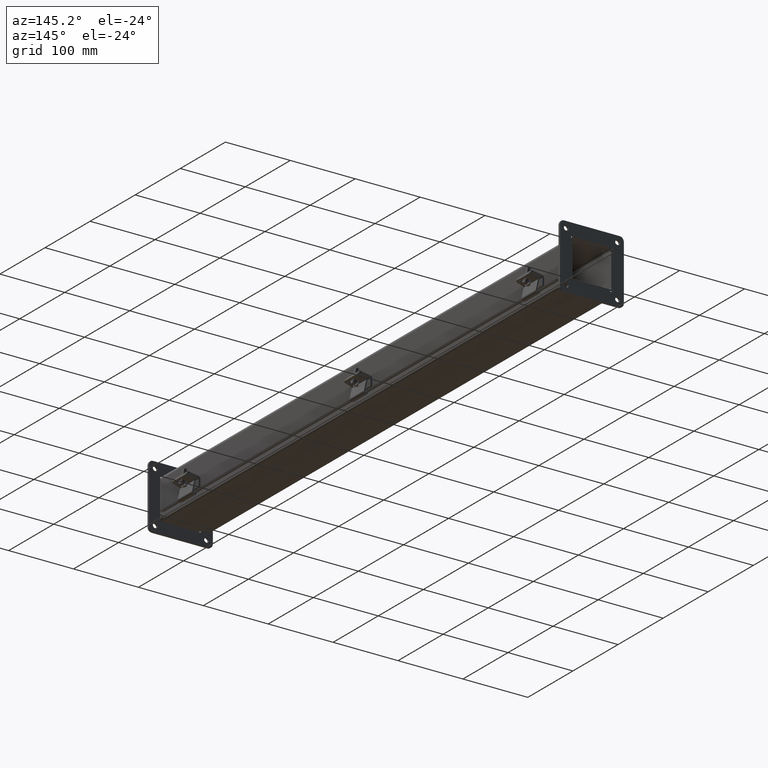
[diagram: clean part render]
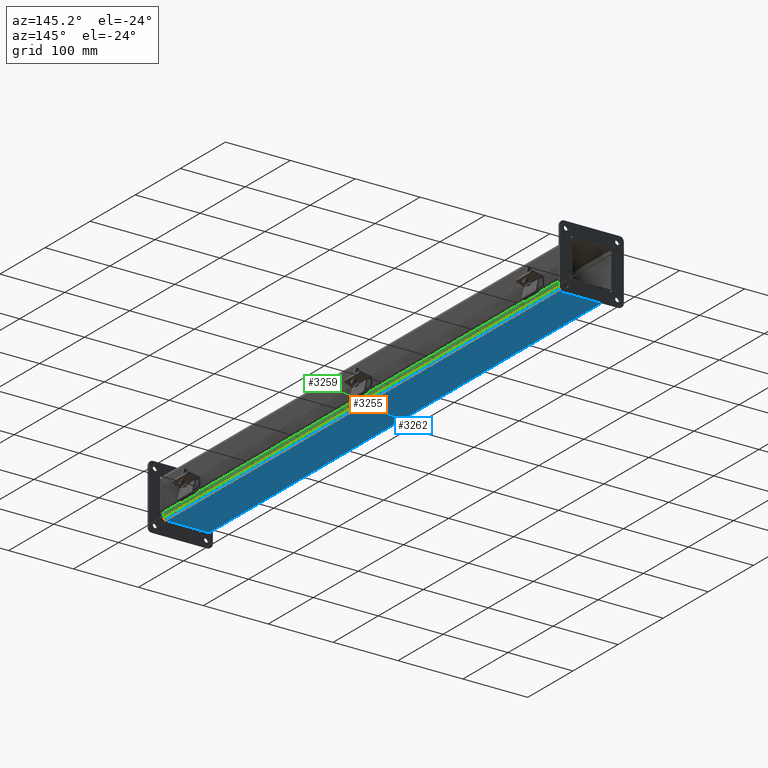
[diagram: same view with three faces highlighted in distinct colors, each labeled with its STEP entity id]
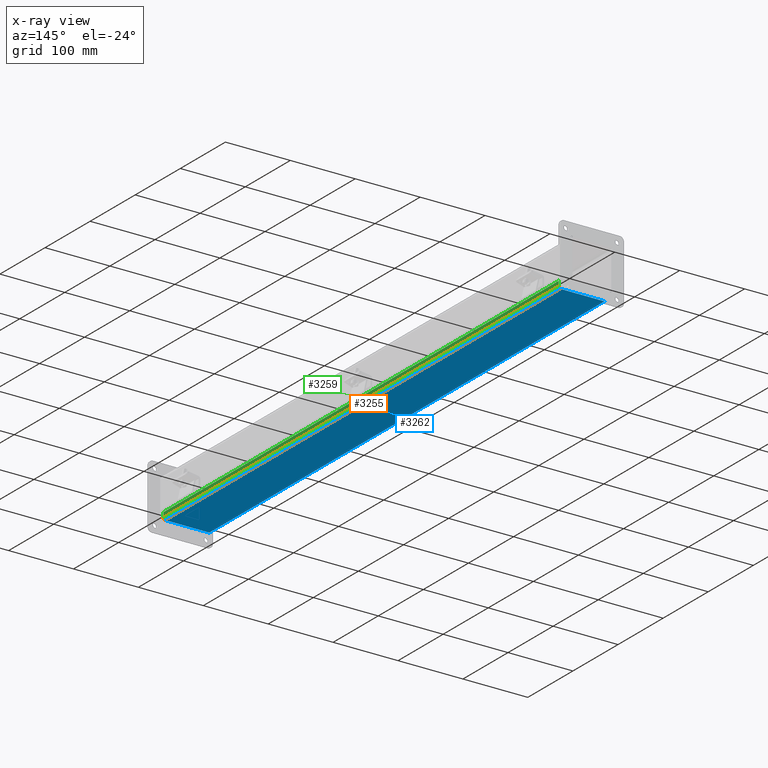
[diagram: x-ray of the same camera — body ghosted, the three highlighted faces saturated]
A machine part, auxiliary view with three faces highlighted in distinct colors.
The next image is the same camera in x-ray (body ghosted, the three faces saturated) — at least one of them is partly hidden behind the body in this view.
Their STEP definitions:

[orange] entity #3255 — the highlighted cylindrical surface (edge-blend (fillet) strip) has radius 2.6733 mm, axis along (-0, -1, -0).
#391=FACE_OUTER_BOUND($,#583,.T.);
#583=EDGE_LOOP($,(#2499,#2500,#2501,#2502));
#767=CIRCLE($,#3519,0.10525);
#768=CIRCLE($,#3520,0.10525);
#964=LINE($,#5089,#1274);
#965=LINE($,#5093,#1275);
#1274=VECTOR($,#4121,34.5);
#1275=VECTOR($,#4124,34.5);
#1548=VERTEX_POINT($,#5039);
#1562=VERTEX_POINT($,#5088);
#1563=VERTEX_POINT($,#5090);
#1564=VERTEX_POINT($,#5092);
#1906=EDGE_CURVE($,#1548,#1562,#964,.T.);
#1907=EDGE_CURVE($,#1563,#1548,#767,.T.);
#1908=EDGE_CURVE($,#1564,#1563,#965,.T.);
#1909=EDGE_CURVE($,#1562,#1564,#768,.T.);
#2499=ORIENTED_EDGE($,*,*,#1906,.F.);
#2500=ORIENTED_EDGE($,*,*,#1907,.F.);
#2501=ORIENTED_EDGE($,*,*,#1908,.F.);
#2502=ORIENTED_EDGE($,*,*,#1909,.F.);
#3031=CYLINDRICAL_SURFACE($,#3518,0.10525);
#3255=ADVANCED_FACE($,(#391),#3031,.T.);
#3518=AXIS2_PLACEMENT_3D($,#5087,#4119,#4120);
#3519=AXIS2_PLACEMENT_3D($,#5091,#4122,#4123);
#3520=AXIS2_PLACEMENT_3D($,#5094,#4125,#4126);
#4119=DIRECTION('center_axis',(1.82439935576883E-016,-1.,0.));
#4120=DIRECTION('ref_axis',(0.,0.,-1.));
#4121=DIRECTION($,(-1.82385792671026E-016,1.,-9.94924179423962E-035));
#4122=DIRECTION('center_axis',(1.82439935576883E-016,-1.,0.));
#4123=DIRECTION('ref_axis',(9.96702735930714E-014,0.,-1.));
#4124=DIRECTION($,(1.82439935576883E-016,-1.,0.));
#4125=DIRECTION('center_axis',(-1.82439935576883E-016,1.,0.));
#4126=DIRECTION('ref_axis',(1.,0.,1.66117122655119E-015));
#5039=CARTESIAN_POINT('',(1.4375,-17.25,0.10525));
#5087=CARTESIAN_POINT('Origin',(1.33225,0.,0.10525));
#5088=CARTESIAN_POINT('',(1.43749999999999,17.25,0.10525));
#5089=CARTESIAN_POINT($,(1.4375,4.96433943745493E-016,0.10525));
#5090=CARTESIAN_POINT('',(1.33225,-17.25,-2.18547839493141E-017));
#5091=CARTESIAN_POINT('Origin',(1.33225,-17.25,0.10525));
#5092=CARTESIAN_POINT('',(1.33225,17.25,-2.18547839493141E-017));
#5093=CARTESIAN_POINT($,(1.33225,8.625,0.));
#5094=CARTESIAN_POINT('Origin',(1.33224999999999,17.25,0.10525));

[blue] entity #3262 — the highlighted planar face has unit normal (-0, -0, 1).
#238=PLANE($,#3529);
#398=FACE_OUTER_BOUND($,#590,.T.);
#590=EDGE_LOOP($,(#2527,#2528,#2529,#2530));
#949=LINE($,#5053,#1259);
#965=LINE($,#5093,#1275);
#971=LINE($,#5110,#1281);
#973=LINE($,#5113,#1283);
#1259=VECTOR($,#4082,34.5);
#1275=VECTOR($,#4124,34.5);
#1281=VECTOR($,#4148,2.6645);
#1283=VECTOR($,#4152,2.6645);
#1552=VERTEX_POINT($,#5050);
#1553=VERTEX_POINT($,#5052);
#1563=VERTEX_POINT($,#5090);
#1564=VERTEX_POINT($,#5092);
#1888=EDGE_CURVE($,#1553,#1552,#949,.T.);
#1908=EDGE_CURVE($,#1564,#1563,#965,.T.);
#1917=EDGE_CURVE($,#1553,#1563,#971,.T.);
#1919=EDGE_CURVE($,#1564,#1552,#973,.T.);
#2527=ORIENTED_EDGE($,*,*,#1888,.T.);
#2528=ORIENTED_EDGE($,*,*,#1919,.F.);
#2529=ORIENTED_EDGE($,*,*,#1908,.T.);
#2530=ORIENTED_EDGE($,*,*,#1917,.F.);
#3262=ADVANCED_FACE($,(#398),#238,.F.);
#3529=AXIS2_PLACEMENT_3D($,#5112,#4150,#4151);
#4082=DIRECTION($,(-6.0813311858961E-017,1.,0.));
#4124=DIRECTION($,(1.82439935576883E-016,-1.,0.));
#4148=DIRECTION($,(1.,0.,0.));
#4150=DIRECTION('center_axis',(0.,0.,1.));
#4151=DIRECTION('ref_axis',(1.,0.,0.));
#4152=DIRECTION($,(-1.,0.,0.));
#5050=CARTESIAN_POINT('',(-1.33225,17.25,-2.18547839493141E-017));
#5052=CARTESIAN_POINT('',(-1.33225,-17.25,-2.18547839493141E-017));
#5053=CARTESIAN_POINT($,(-1.33225,-8.625,0.));
#5090=CARTESIAN_POINT('',(1.33225,-17.25,-2.18547839493141E-017));
#5092=CARTESIAN_POINT('',(1.33225,17.25,-2.18547839493141E-017));
#5093=CARTESIAN_POINT($,(1.33225,8.625,0.));
#5110=CARTESIAN_POINT($,(-1.4375,-17.25,0.));
#5112=CARTESIAN_POINT('Origin',(-1.31128703695885E-015,-9.2921039448832E-016,
0.));
#5113=CARTESIAN_POINT($,(1.4375,17.25,0.));

[green] entity #3259 — the highlighted planar face has unit normal (-1, 0, 0).
#236=PLANE($,#3526);
#395=FACE_OUTER_BOUND($,#587,.T.);
#587=EDGE_LOOP($,(#2515,#2516,#2517,#2518));
#942=LINE($,#5035,#1252);
#945=LINE($,#5041,#1255);
#964=LINE($,#5089,#1274);
#966=LINE($,#5096,#1276);
#1252=VECTOR($,#4067,34.5);
#1255=VECTOR($,#4072,0.306937422290399);
#1274=VECTOR($,#4121,34.5);
#1276=VECTOR($,#4129,0.306937422290392);
#1544=VERTEX_POINT($,#5020);
#1545=VERTEX_POINT($,#5024);
#1548=VERTEX_POINT($,#5039);
#1562=VERTEX_POINT($,#5088);
#1880=EDGE_CURVE($,#1544,#1545,#942,.T.);
#1883=EDGE_CURVE($,#1548,#1545,#945,.T.);
#1906=EDGE_CURVE($,#1548,#1562,#964,.T.);
#1910=EDGE_CURVE($,#1544,#1562,#966,.T.);
#2515=ORIENTED_EDGE($,*,*,#1880,.T.);
#2516=ORIENTED_EDGE($,*,*,#1883,.F.);
#2517=ORIENTED_EDGE($,*,*,#1906,.T.);
#2518=ORIENTED_EDGE($,*,*,#1910,.F.);
#3259=ADVANCED_FACE($,(#395),#236,.F.);
#3526=AXIS2_PLACEMENT_3D($,#5106,#4141,#4142);
#4067=DIRECTION($,(1.82385792671026E-016,-1.,1.82439935576883E-016));
#4072=DIRECTION($,(1.83758917935762E-015,3.45126646034193E-031,1.));
#4121=DIRECTION($,(-1.82385792671026E-016,1.,-9.94924179423962E-035));
#4129=DIRECTION($,(-1.77635683940025E-015,-1.82439935576883E-016,-1.));
#4141=DIRECTION('center_axis',(-1.,-1.82385792671026E-016,1.76401651528986E-015));
#4142=DIRECTION('ref_axis',(1.69197988952874E-015,-1.82439935576883E-016,
1.));
#5020=CARTESIAN_POINT('',(1.43749999999999,17.25,0.412187422290392));
#5024=CARTESIAN_POINT('',(1.4375,-17.25,0.412187422290399));
#5035=CARTESIAN_POINT($,(1.4375,-8.625,0.412187422290397));
#5039=CARTESIAN_POINT('',(1.4375,-17.25,0.10525));
#5041=CARTESIAN_POINT($,(1.4375,-17.25,0.105250000000006));
#5088=CARTESIAN_POINT('',(1.43749999999999,17.25,0.10525));
#5089=CARTESIAN_POINT($,(1.4375,4.96433943745493E-016,0.10525));
#5096=CARTESIAN_POINT($,(1.43749999999999,17.25,-0.0952150272255651));
#5106=CARTESIAN_POINT('Origin',(1.4375,9.73668327953538E-016,0.283758743193612));